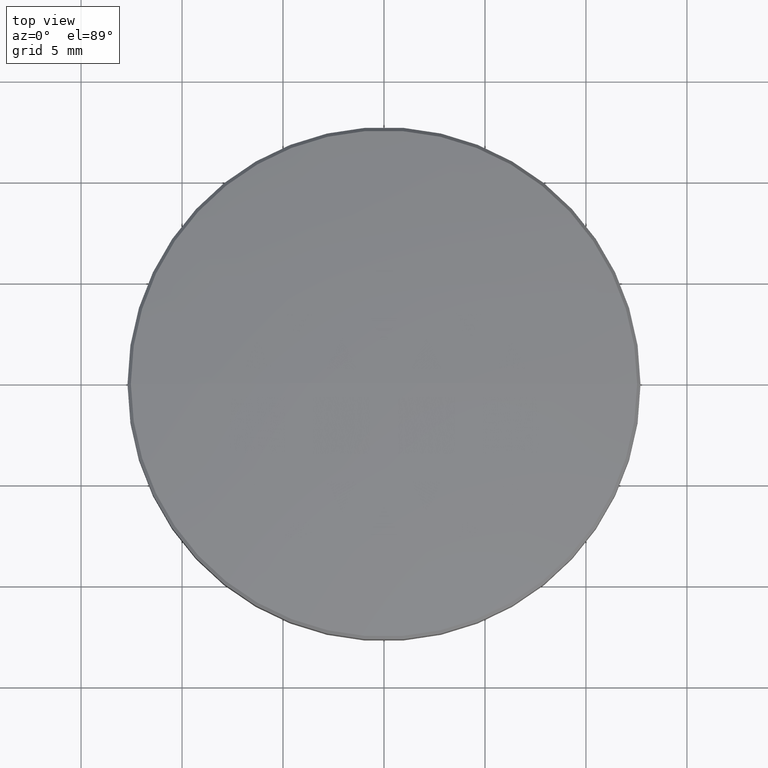
[diagram: clean part render]
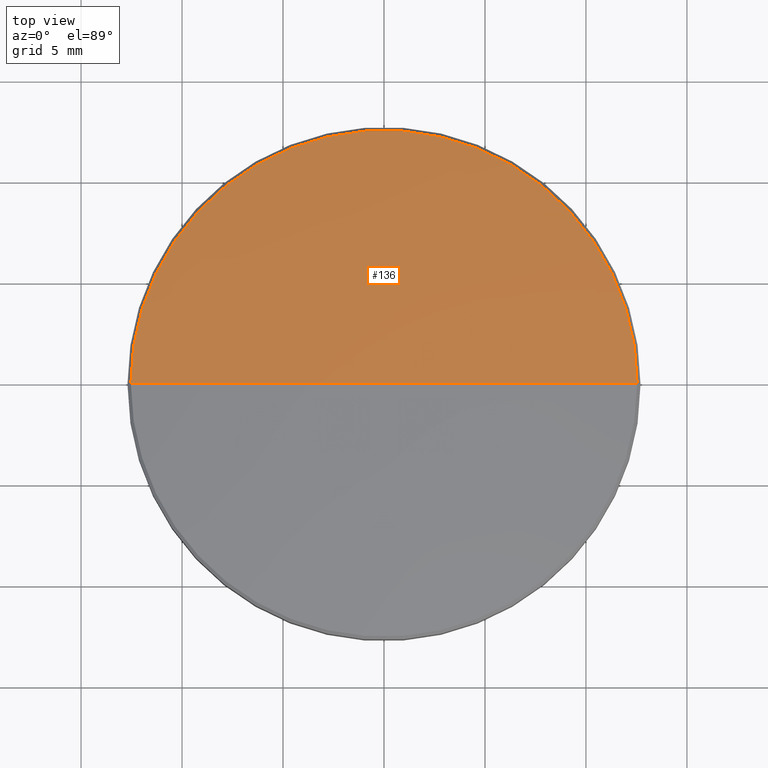
[diagram: same view with one face highlighted and labeled with its STEP entity id]
A machine part, top view. The second image highlights one B-rep face of the part: STEP entity #136.
In plain terms, the highlighted spherical surface has radius 71.66 mm.
Its self-contained STEP definition (entity closure, byte-faithful):
#5 = CIRCLE ( 'NONE', #192, 12.53498460677301907 ) ;
#13 = EDGE_LOOP ( 'NONE', ( #101, #48, #232 ) ) ;
#14 = EDGE_CURVE ( 'NONE', #217, #95, #168, .T. ) ;
#19 = SPHERICAL_SURFACE ( 'NONE', #250, 71.65999999999999659 ) ;
#29 = DIRECTION ( 'NONE',  ( -1.000000000000000000, -1.224646799147353454E-16, 0.000000000000000000 ) ) ;
#48 = ORIENTED_EDGE ( 'NONE', *, *, #65, .T. ) ;
#50 = CARTESIAN_POINT ( 'NONE',  ( 0.000000000000000000, 0.000000000000000000, 3.895154035038178364 ) ) ;
#52 = VERTEX_POINT ( 'NONE', #93 ) ;
#58 = CARTESIAN_POINT ( 'NONE',  ( 4.387909481344959759E-15, 0.000000000000000000, 5.000000000000004441 ) ) ;
#60 = DIRECTION ( 'NONE',  ( -1.000000000000000000, 0.000000000000000000, 1.936615658360934486E-16 ) ) ;
#65 = EDGE_CURVE ( 'NONE', #217, #52, #130, .T. ) ;
#71 = EDGE_CURVE ( 'NONE', #52, #95, #5, .T. ) ;
#80 = FACE_OUTER_BOUND ( 'NONE', #13, .T. ) ;
#87 = CARTESIAN_POINT ( 'NONE',  ( -12.53498460677301729, 0.000000000000000000, 3.895154035038178364 ) ) ;
#92 = DIRECTION ( 'NONE',  ( -1.224646799147353207E-16, 1.000000000000000000, 1.499759782661856513E-32 ) ) ;
#93 = CARTESIAN_POINT ( 'NONE',  ( 12.53498460677301729, 1.535092877604591061E-15, 3.895154035038178364 ) ) ;
#95 = VERTEX_POINT ( 'NONE', #87 ) ;
#101 = ORIENTED_EDGE ( 'NONE', *, *, #14, .F. ) ;
#130 = CIRCLE ( 'NONE', #202, 71.65999999999999659 ) ;
#136 = ADVANCED_FACE ( 'NONE', ( #80 ), #19, .T. ) ;
#145 = DIRECTION ( 'NONE',  ( -1.000000000000000000, 0.000000000000000000, 0.000000000000000000 ) ) ;
#161 = AXIS2_PLACEMENT_3D ( 'NONE', #169, #196, #253 ) ;
#168 = CIRCLE ( 'NONE', #161, 71.65999999999999659 ) ;
#169 = CARTESIAN_POINT ( 'NONE',  ( 0.000000000000000000, 0.000000000000000000, -66.65999999999999659 ) ) ;
#174 = DIRECTION ( 'NONE',  ( -0.000000000000000000, -0.000000000000000000, 1.000000000000000000 ) ) ;
#183 = CARTESIAN_POINT ( 'NONE',  ( 0.000000000000000000, 0.000000000000000000, -66.65999999999999659 ) ) ;
#192 = AXIS2_PLACEMENT_3D ( 'NONE', #50, #174, #145 ) ;
#196 = DIRECTION ( 'NONE',  ( 0.000000000000000000, -1.000000000000000000, 0.000000000000000000 ) ) ;
#202 = AXIS2_PLACEMENT_3D ( 'NONE', #236, #92, #29 ) ;
#217 = VERTEX_POINT ( 'NONE', #58 ) ;
#221 = DIRECTION ( 'NONE',  ( 0.000000000000000000, 1.000000000000000000, -0.000000000000000000 ) ) ;
#232 = ORIENTED_EDGE ( 'NONE', *, *, #71, .T. ) ;
#236 = CARTESIAN_POINT ( 'NONE',  ( 0.000000000000000000, 0.000000000000000000, -66.65999999999999659 ) ) ;
#250 = AXIS2_PLACEMENT_3D ( 'NONE', #183, #221, #60 ) ;
#253 = DIRECTION ( 'NONE',  ( 0.000000000000000000, 0.000000000000000000, -1.000000000000000000 ) ) ;